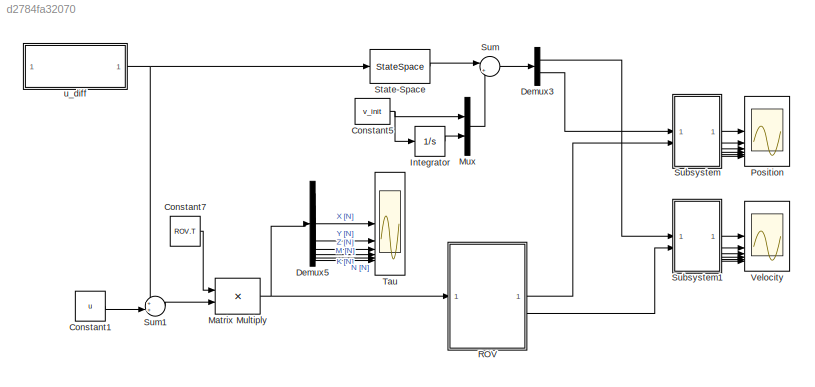
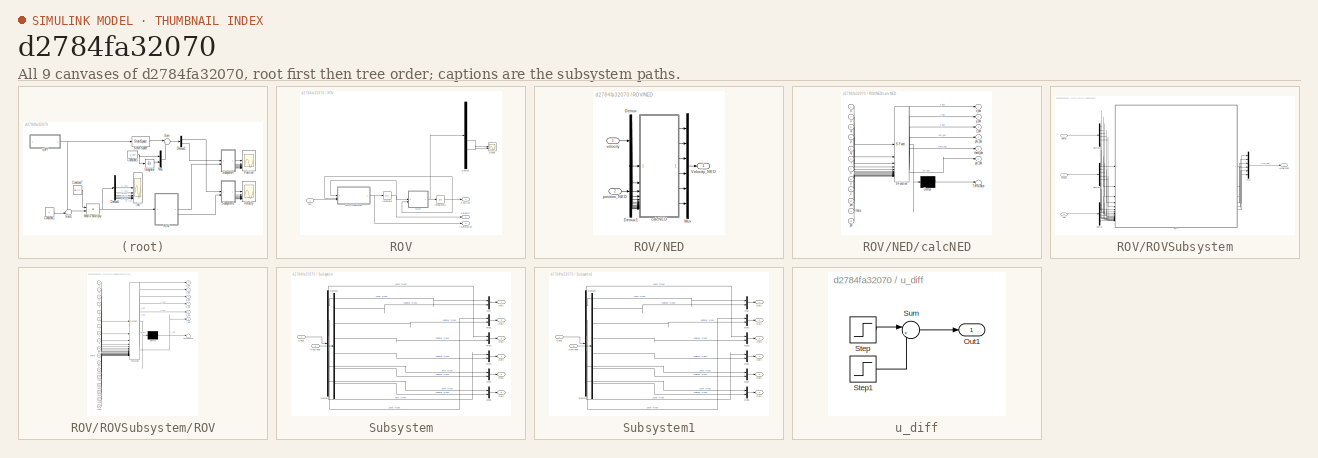
[diagram: thumbnail index - all 9 canvases of the model, root first then tree order]
MODEL slx_d2784fa32070
KIND model
CONFIG AbsTol = auto
CONFIG EnableMultiTasking = off
CONFIG FixedStep = auto
CONFIG MaxStep = 1e-3
CONFIG MinStep = auto
CONFIG RelTol = 1e-6
CONFIG SampleTimeConstraint = Unconstrained
CONFIG SolverName = VariableStepAuto
CONFIG StartTime = 0.0
CONFIG StopTime = 90
BLOCK [Constant] Constant1
  Value = u
BLOCK [Constant] Constant5
  Value = v_init
BLOCK [Constant] Constant7
  Value = ROV.T
BLOCK [Demux] Demux3
  Outputs = 2
BLOCK [Demux] Demux5
  Outputs = 6
BLOCK [Integrator] Integrator
BLOCK [Product] Matrix Multiply
  Multiplication = Matrix(*)
BLOCK [Mux] Mux
  DisplayOption = bar
  Inputs = 2
BLOCK [Scope] Position
  Floating = off
  NumInputPorts = 6
  ScopeSpecificationString = Simulink.scopes.TimeScopeBlockCfg('CurrentConfiguration', extmgr.ConfigurationSet(extmgr.Configuration('Core','General UI',true,'FigureColor',[1 1 1]),extmgr.Configuration('Core','Source UI',true),extmgr.Configuration('Sources','WiredSimulink',true,'DataLoggingVariableName','ScopeData1'),extmgr.Configuration('Visuals','Time Domain',true,'SerializedDisplays',{struct('MinYLimReal','-11.5275','MaxYLi...<+7548ch>
BLOCK [SubSystem] ROV
BLOCK [Outport] ROV/Acceleration
  Port = 3
BLOCK [Demux] ROV/Demux
  Outputs = 6
BLOCK [Integrator] ROV/Integrator
  InitialCondition = v_init'
BLOCK [Integrator] ROV/Integrator1
  InitialCondition = eta_init'
BLOCK [SubSystem] ROV/NED
BLOCK [Demux] ROV/NED/Demux
  Outputs = 6
BLOCK [Demux] ROV/NED/Demux1
  Outputs = 6
BLOCK [Mux] ROV/NED/Mux
  DisplayOption = bar
  Inputs = 6
BLOCK [Outport] ROV/NED/Velocity_NED
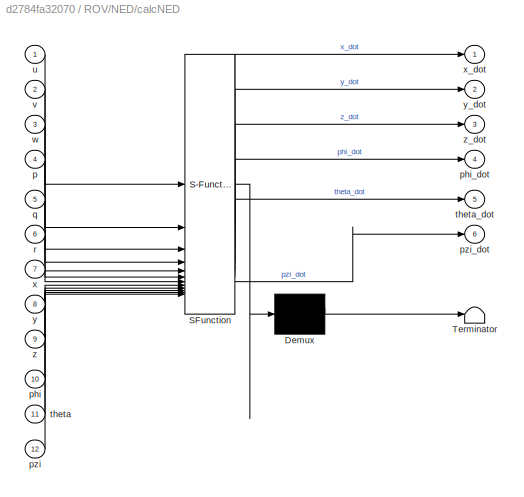
BLOCK [SubSystem] ROV/NED/calcNED
  ErrorFcn = Stateflow.Translate.translate
  PermitHierarchicalResolution = ExplicitOnly
  SFBlockType = MATLAB Function
  TreatAsAtomicUnit = on
BLOCK [Demux] ROV/NED/calcNED/ Demux 
  Outputs = 1
BLOCK [S-Function] ROV/NED/calcNED/ SFunction 
  EnableBusSupport = on
  FunctionName = sf_sfun
  PortCounts = [12 7]
  SFcnIsStateOwnerBlock = off
  SFunctionDeploymentMode = off
  Tag = Stateflow S-Function 1
BLOCK [Terminator] ROV/NED/calcNED/ Terminator 
BLOCK [Inport] ROV/NED/calcNED/p
  Port = 4
BLOCK [Inport] ROV/NED/calcNED/phi
  Port = 10
BLOCK [Outport] ROV/NED/calcNED/phi_dot
  Port = 4
BLOCK [Inport] ROV/NED/calcNED/pzi
  Port = 12
BLOCK [Outport] ROV/NED/calcNED/pzi_dot
  Port = 6
BLOCK [Inport] ROV/NED/calcNED/q
  Port = 5
BLOCK [Inport] ROV/NED/calcNED/r
  Port = 6
BLOCK [Inport] ROV/NED/calcNED/theta
  Port = 11
BLOCK [Outport] ROV/NED/calcNED/theta_dot
  Port = 5
BLOCK [Inport] ROV/NED/calcNED/u
BLOCK [Inport] ROV/NED/calcNED/v
  Port = 2
BLOCK [Inport] ROV/NED/calcNED/w
  Port = 3
BLOCK [Inport] ROV/NED/calcNED/x
  Port = 7
BLOCK [Outport] ROV/NED/calcNED/x_dot
BLOCK [Inport] ROV/NED/calcNED/y
  Port = 8
BLOCK [Outport] ROV/NED/calcNED/y_dot
  Port = 2
BLOCK [Inport] ROV/NED/calcNED/z
  Port = 9
BLOCK [Outport] ROV/NED/calcNED/z_dot
  Port = 3
BLOCK [Inport] ROV/NED/position_NED
  Port = 2
BLOCK [Inport] ROV/NED/velocity
BLOCK [Outport] ROV/Position
BLOCK [SubSystem] ROV/ROVSubsystem
BLOCK [Outport] ROV/ROVSubsystem/Acceleration
BLOCK [Demux] ROV/ROVSubsystem/Demux
  Outputs = 6
BLOCK [Demux] ROV/ROVSubsystem/Demux1
  Outputs = 6
BLOCK [Demux] ROV/ROVSubsystem/Demux2
  Outputs = 6
BLOCK [Mux] ROV/ROVSubsystem/Mux
  DisplayOption = bar
  Inputs = 6
BLOCK [Inport] ROV/ROVSubsystem/Position
  Port = 2
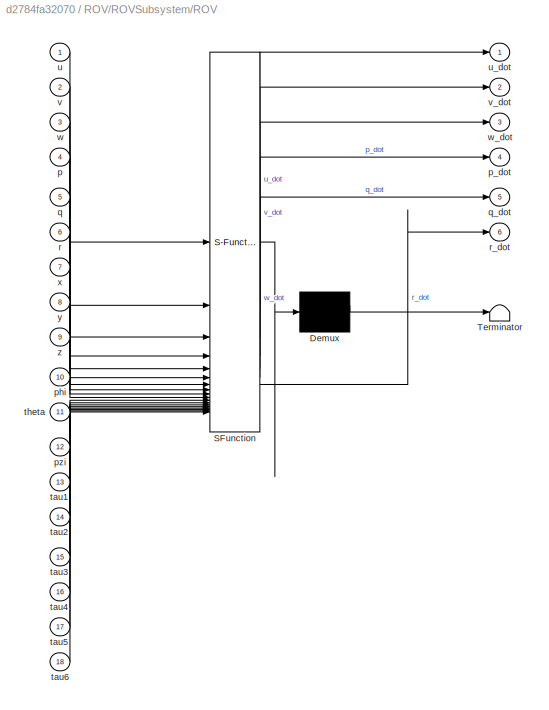
BLOCK [SubSystem] ROV/ROVSubsystem/ROV
  ErrorFcn = Stateflow.Translate.translate
  PermitHierarchicalResolution = ExplicitOnly
  SFBlockType = MATLAB Function
  TreatAsAtomicUnit = on
BLOCK [Demux] ROV/ROVSubsystem/ROV/ Demux 
  Outputs = 1
BLOCK [S-Function] ROV/ROVSubsystem/ROV/ SFunction 
  EnableBusSupport = on
  FunctionName = sf_sfun
  PortCounts = [18 7]
  SFcnIsStateOwnerBlock = off
  SFunctionDeploymentMode = off
  Tag = Stateflow S-Function 2
BLOCK [Terminator] ROV/ROVSubsystem/ROV/ Terminator 
BLOCK [Inport] ROV/ROVSubsystem/ROV/p
  Port = 4
BLOCK [Outport] ROV/ROVSubsystem/ROV/p_dot
  Port = 4
BLOCK [Inport] ROV/ROVSubsystem/ROV/phi
  Port = 10
BLOCK [Inport] ROV/ROVSubsystem/ROV/pzi
  Port = 12
BLOCK [Inport] ROV/ROVSubsystem/ROV/q
  Port = 5
BLOCK [Outport] ROV/ROVSubsystem/ROV/q_dot
  Port = 5
BLOCK [Inport] ROV/ROVSubsystem/ROV/r
  Port = 6
BLOCK [Outport] ROV/ROVSubsystem/ROV/r_dot
  Port = 6
BLOCK [Inport] ROV/ROVSubsystem/ROV/tau1
  Port = 13
BLOCK [Inport] ROV/ROVSubsystem/ROV/tau2
  Port = 14
BLOCK [Inport] ROV/ROVSubsystem/ROV/tau3
  Port = 15
BLOCK [Inport] ROV/ROVSubsystem/ROV/tau4
  Port = 16
BLOCK [Inport] ROV/ROVSubsystem/ROV/tau5
  Port = 17
BLOCK [Inport] ROV/ROVSubsystem/ROV/tau6
  Port = 18
BLOCK [Inport] ROV/ROVSubsystem/ROV/theta
  Port = 11
BLOCK [Inport] ROV/ROVSubsystem/ROV/u
BLOCK [Outport] ROV/ROVSubsystem/ROV/u_dot
BLOCK [Inport] ROV/ROVSubsystem/ROV/v
  Port = 2
BLOCK [Outport] ROV/ROVSubsystem/ROV/v_dot
  Port = 2
BLOCK [Inport] ROV/ROVSubsystem/ROV/w
  Port = 3
BLOCK [Outport] ROV/ROVSubsystem/ROV/w_dot
  Port = 3
BLOCK [Inport] ROV/ROVSubsystem/ROV/x
  Port = 7
BLOCK [Inport] ROV/ROVSubsystem/ROV/y
  Port = 8
BLOCK [Inport] ROV/ROVSubsystem/ROV/z
  Port = 9
BLOCK [Inport] ROV/ROVSubsystem/Tau
  Port = 3
BLOCK [Inport] ROV/ROVSubsystem/Velocity
BLOCK [Scope] ROV/Scope
  Floating = off
  NumInputPorts = 2
  ScopeSpecificationString = Simulink.scopes.TimeScopeBlockCfg('CurrentConfiguration', extmgr.ConfigurationSet(extmgr.Configuration('Core','General UI',true),extmgr.Configuration('Core','Source UI',true),extmgr.Configuration('Sources','WiredSimulink',true,'DataLoggingVariableName','ScopeData1'),extmgr.Configuration('Visuals','Time Domain',true,'SerializedDisplays',{struct('MinYLimReal','-0.13104','MaxYLimReal','0.23192','YLab...<+1985ch>
BLOCK [Inport] ROV/Tau
BLOCK [Outport] ROV/Velocity
  Port = 2
BLOCK [StateSpace] State-Space
  A = linsysROV.A
  B = linsysROV.B
  C = linsysROV.C
  D = linsysROV.D
  InitialCondition = zeros(1,12)
BLOCK [SubSystem] Subsystem
BLOCK [Demux] Subsystem/Demux
  Outputs = 6
BLOCK [Demux] Subsystem/Demux1
  Outputs = 6
BLOCK [Inport] Subsystem/Linear
BLOCK [Mux] Subsystem/Mux
  DisplayOption = bar
  Inputs = 2
BLOCK [Mux] Subsystem/Mux1
  DisplayOption = bar
  Inputs = 2
BLOCK [Mux] Subsystem/Mux2
  DisplayOption = bar
  Inputs = 2
BLOCK [Mux] Subsystem/Mux3
  DisplayOption = bar
  Inputs = 2
BLOCK [Mux] Subsystem/Mux4
  DisplayOption = bar
  Inputs = 2
BLOCK [Mux] Subsystem/Mux5
  DisplayOption = bar
  Inputs = 2
BLOCK [Inport] Subsystem/Nonlinear
  Port = 2
BLOCK [Outport] Subsystem/Out1
BLOCK [Outport] Subsystem/Out2
  Port = 2
BLOCK [Outport] Subsystem/Out3
  Port = 3
BLOCK [Outport] Subsystem/Out4
  Port = 4
BLOCK [Outport] Subsystem/Out5
  Port = 5
BLOCK [Outport] Subsystem/Out6
  Port = 6
BLOCK [SubSystem] Subsystem1
BLOCK [Demux] Subsystem1/Demux
  Outputs = 6
BLOCK [Demux] Subsystem1/Demux1
  Outputs = 6
BLOCK [Inport] Subsystem1/Linear
BLOCK [Mux] Subsystem1/Mux
  DisplayOption = bar
  Inputs = 2
BLOCK [Mux] Subsystem1/Mux1
  DisplayOption = bar
  Inputs = 2
BLOCK [Mux] Subsystem1/Mux2
  DisplayOption = bar
  Inputs = 2
BLOCK [Mux] Subsystem1/Mux3
  DisplayOption = bar
  Inputs = 2
BLOCK [Mux] Subsystem1/Mux4
  DisplayOption = bar
  Inputs = 2
BLOCK [Mux] Subsystem1/Mux5
  DisplayOption = bar
  Inputs = 2
BLOCK [Inport] Subsystem1/Nonlinear
  Port = 2
BLOCK [Outport] Subsystem1/Out1
BLOCK [Outport] Subsystem1/Out2
  Port = 2
BLOCK [Outport] Subsystem1/Out3
  Port = 3
BLOCK [Outport] Subsystem1/Out4
  Port = 4
BLOCK [Outport] Subsystem1/Out5
  Port = 5
BLOCK [Outport] Subsystem1/Out6
  Port = 6
BLOCK [Sum] Sum
  Inputs = |++
BLOCK [Sum] Sum1
  Inputs = ++|
BLOCK [Scope] Tau
  Floating = off
  NumInputPorts = 6
  ScopeSpecificationString = Simulink.scopes.TimeScopeBlockCfg('CurrentConfiguration', extmgr.ConfigurationSet(extmgr.Configuration('Core','General UI',true,'FigureColor',[1 1 1]),extmgr.Configuration('Core','Source UI',true),extmgr.Configuration('Sources','WiredSimulink',true,'DataLoggingVariableName','ScopeData3'),extmgr.Configuration('Visuals','Time Domain',true,'SerializedDisplays',{struct('MinYLimReal','94.26294','MaxYLi...<+5793ch>
BLOCK [Scope] Velocity
  Floating = off
  NumInputPorts = 6
  ScopeSpecificationString = Simulink.scopes.TimeScopeBlockCfg('CurrentConfiguration', extmgr.ConfigurationSet(extmgr.Configuration('Core','General UI',true,'FigureColor',[1 1 1]),extmgr.Configuration('Core','Source UI',true),extmgr.Configuration('Sources','WiredSimulink',true,'DataLoggingVariableName','ScopeData2'),extmgr.Configuration('Visuals','Time Domain',true,'SerializedDisplays',{struct('MinYLimReal','0.98612','MaxYLim...<+7548ch>
BLOCK [SubSystem] u_diff
BLOCK [Outport] u_diff/Out1
BLOCK [Step] u_diff/Step
  After = New_val
  Before = Init_val
  SampleTime = 0
  Time = Step_time_1
BLOCK [Step] u_diff/Step1
  After = New_val
  SampleTime = 0
  Time = Step_time_2
BLOCK [Sum] u_diff/Sum
  Inputs = |+-
LINE Constant1:1 -> Sum1:2
NET Constant5:1 -> Integrator:1, Mux:1
LINE Constant7:1 -> Matrix Multiply:1
LINE Demux3:1 -> Subsystem1:1
LINE Demux3:2 -> Subsystem:1
LINE Demux5:1 -> Tau:1
LINE Demux5:2 -> Tau:2
LINE Demux5:3 -> Tau:3
LINE Demux5:4 -> Tau:4
LINE Demux5:5 -> Tau:5
LINE Demux5:6 -> Tau:6
LINE Integrator:1 -> Mux:2
NET Matrix Multiply:1 -> Demux5:1, ROV:1
LINE Mux:1 -> Sum:2
LINE ROV/Demux:4 -> ROV/Scope:1
LINE ROV/Demux:5 -> ROV/Scope:2
NET ROV/Integrator1:1 -> ROV/NED:2, ROV/Position:1, ROV/ROVSubsystem:2
NET ROV/Integrator:1 -> ROV/NED:1, ROV/ROVSubsystem:1, ROV/Velocity:1
LINE ROV/NED/Demux1:1 -> ROV/NED/calcNED:7
LINE ROV/NED/Demux1:2 -> ROV/NED/calcNED:8
LINE ROV/NED/Demux1:3 -> ROV/NED/calcNED:9
LINE ROV/NED/Demux1:4 -> ROV/NED/calcNED:10
LINE ROV/NED/Demux1:5 -> ROV/NED/calcNED:11
LINE ROV/NED/Demux1:6 -> ROV/NED/calcNED:12
LINE ROV/NED/Demux:1 -> ROV/NED/calcNED:1
LINE ROV/NED/Demux:2 -> ROV/NED/calcNED:2
LINE ROV/NED/Demux:3 -> ROV/NED/calcNED:3
LINE ROV/NED/Demux:4 -> ROV/NED/calcNED:4
LINE ROV/NED/Demux:5 -> ROV/NED/calcNED:5
LINE ROV/NED/Demux:6 -> ROV/NED/calcNED:6
LINE ROV/NED/Mux:1 -> ROV/NED/Velocity_NED:1
LINE ROV/NED/calcNED:1 -> ROV/NED/Mux:1
LINE ROV/NED/calcNED:2 -> ROV/NED/Mux:2
LINE ROV/NED/calcNED:3 -> ROV/NED/Mux:3
LINE ROV/NED/calcNED:4 -> ROV/NED/Mux:4
LINE ROV/NED/calcNED:5 -> ROV/NED/Mux:5
LINE ROV/NED/calcNED:6 -> ROV/NED/Mux:6
LINE ROV/NED/position_NED:1 -> ROV/NED/Demux1:1
LINE ROV/NED/velocity:1 -> ROV/NED/Demux:1
NET ROV/NED:1 -> ROV/Demux:1, ROV/Integrator1:1
LINE ROV/ROVSubsystem/Demux1:1 -> ROV/ROVSubsystem/ROV:7
LINE ROV/ROVSubsystem/Demux1:2 -> ROV/ROVSubsystem/ROV:8
LINE ROV/ROVSubsystem/Demux1:3 -> ROV/ROVSubsystem/ROV:9
LINE ROV/ROVSubsystem/Demux1:4 -> ROV/ROVSubsystem/ROV:10
LINE ROV/ROVSubsystem/Demux1:5 -> ROV/ROVSubsystem/ROV:11
LINE ROV/ROVSubsystem/Demux1:6 -> ROV/ROVSubsystem/ROV:12
LINE ROV/ROVSubsystem/Demux2:1 -> ROV/ROVSubsystem/ROV:1
LINE ROV/ROVSubsystem/Demux2:2 -> ROV/ROVSubsystem/ROV:2
LINE ROV/ROVSubsystem/Demux2:3 -> ROV/ROVSubsystem/ROV:3
LINE ROV/ROVSubsystem/Demux2:4 -> ROV/ROVSubsystem/ROV:4
LINE ROV/ROVSubsystem/Demux2:5 -> ROV/ROVSubsystem/ROV:5
LINE ROV/ROVSubsystem/Demux2:6 -> ROV/ROVSubsystem/ROV:6
LINE ROV/ROVSubsystem/Demux:1 -> ROV/ROVSubsystem/ROV:13
LINE ROV/ROVSubsystem/Demux:2 -> ROV/ROVSubsystem/ROV:14
LINE ROV/ROVSubsystem/Demux:3 -> ROV/ROVSubsystem/ROV:15
LINE ROV/ROVSubsystem/Demux:4 -> ROV/ROVSubsystem/ROV:16
LINE ROV/ROVSubsystem/Demux:5 -> ROV/ROVSubsystem/ROV:17
LINE ROV/ROVSubsystem/Demux:6 -> ROV/ROVSubsystem/ROV:18
LINE ROV/ROVSubsystem/Mux:1 -> ROV/ROVSubsystem/Acceleration:1
LINE ROV/ROVSubsystem/Position:1 -> ROV/ROVSubsystem/Demux1:1
LINE ROV/ROVSubsystem/ROV:1 -> ROV/ROVSubsystem/Mux:1
LINE ROV/ROVSubsystem/ROV:2 -> ROV/ROVSubsystem/Mux:2
LINE ROV/ROVSubsystem/ROV:3 -> ROV/ROVSubsystem/Mux:3
LINE ROV/ROVSubsystem/ROV:4 -> ROV/ROVSubsystem/Mux:4
LINE ROV/ROVSubsystem/ROV:5 -> ROV/ROVSubsystem/Mux:5
LINE ROV/ROVSubsystem/ROV:6 -> ROV/ROVSubsystem/Mux:6
LINE ROV/ROVSubsystem/Tau:1 -> ROV/ROVSubsystem/Demux:1
LINE ROV/ROVSubsystem/Velocity:1 -> ROV/ROVSubsystem/Demux2:1
NET ROV/ROVSubsystem:1 -> ROV/Acceleration:1, ROV/Integrator:1
LINE ROV/Tau:1 -> ROV/ROVSubsystem:3
LINE ROV:1 -> Subsystem:2
LINE ROV:2 -> Subsystem1:2
LINE State-Space:1 -> Sum:1
LINE Subsystem/Demux1:1 -> Subsystem/Mux:2
LINE Subsystem/Demux1:2 -> Subsystem/Mux1:2
LINE Subsystem/Demux1:3 -> Subsystem/Mux2:2
LINE Subsystem/Demux1:4 -> Subsystem/Mux3:2
LINE Subsystem/Demux1:5 -> Subsystem/Mux4:2
LINE Subsystem/Demux1:6 -> Subsystem/Mux5:2
LINE Subsystem/Demux:1 -> Subsystem/Mux:1
LINE Subsystem/Demux:2 -> Subsystem/Mux1:1
LINE Subsystem/Demux:3 -> Subsystem/Mux2:1
LINE Subsystem/Demux:4 -> Subsystem/Mux3:1
LINE Subsystem/Demux:5 -> Subsystem/Mux4:1
LINE Subsystem/Demux:6 -> Subsystem/Mux5:1
LINE Subsystem/Linear:1 -> Subsystem/Demux:1
LINE Subsystem/Mux1:1 -> Subsystem/Out2:1
LINE Subsystem/Mux2:1 -> Subsystem/Out3:1
LINE Subsystem/Mux3:1 -> Subsystem/Out4:1
LINE Subsystem/Mux4:1 -> Subsystem/Out5:1
LINE Subsystem/Mux5:1 -> Subsystem/Out6:1
LINE Subsystem/Mux:1 -> Subsystem/Out1:1
LINE Subsystem/Nonlinear:1 -> Subsystem/Demux1:1
LINE Subsystem1/Demux1:1 -> Subsystem1/Mux:2
LINE Subsystem1/Demux1:2 -> Subsystem1/Mux1:2
LINE Subsystem1/Demux1:3 -> Subsystem1/Mux2:2
LINE Subsystem1/Demux1:4 -> Subsystem1/Mux3:2
LINE Subsystem1/Demux1:5 -> Subsystem1/Mux4:2
LINE Subsystem1/Demux1:6 -> Subsystem1/Mux5:2
LINE Subsystem1/Demux:1 -> Subsystem1/Mux:1
LINE Subsystem1/Demux:2 -> Subsystem1/Mux1:1
LINE Subsystem1/Demux:3 -> Subsystem1/Mux2:1
LINE Subsystem1/Demux:4 -> Subsystem1/Mux3:1
LINE Subsystem1/Demux:5 -> Subsystem1/Mux4:1
LINE Subsystem1/Demux:6 -> Subsystem1/Mux5:1
LINE Subsystem1/Linear:1 -> Subsystem1/Demux:1
LINE Subsystem1/Mux1:1 -> Subsystem1/Out2:1
LINE Subsystem1/Mux2:1 -> Subsystem1/Out3:1
LINE Subsystem1/Mux3:1 -> Subsystem1/Out4:1
LINE Subsystem1/Mux4:1 -> Subsystem1/Out5:1
LINE Subsystem1/Mux5:1 -> Subsystem1/Out6:1
LINE Subsystem1/Mux:1 -> Subsystem1/Out1:1
LINE Subsystem1/Nonlinear:1 -> Subsystem1/Demux1:1
LINE Subsystem1:1 -> Velocity:1
LINE Subsystem1:2 -> Velocity:2
LINE Subsystem1:3 -> Velocity:3
LINE Subsystem1:4 -> Velocity:4
LINE Subsystem1:5 -> Velocity:5
LINE Subsystem1:6 -> Velocity:6
LINE Subsystem:1 -> Position:1
LINE Subsystem:2 -> Position:2
LINE Subsystem:3 -> Position:3
LINE Subsystem:4 -> Position:4
LINE Subsystem:5 -> Position:5
LINE Subsystem:6 -> Position:6
LINE Sum1:1 -> Matrix Multiply:2
LINE Sum:1 -> Demux3:1
LINE u_diff/Step1:1 -> u_diff/Sum:2
LINE u_diff/Step:1 -> u_diff/Sum:1
LINE u_diff/Sum:1 -> u_diff/Out1:1
NET u_diff:1 -> State-Space:1, Sum1:1
note: NET lines group one-source signal fan-out (src -> all destinations, sorted); 1:1 wires keep LINE
CHART ROV/NED/calcNED states=1 transitions=1
  STATE_LABEL 'eML_blk_kernel()'
  STATE_LABEL 'SCRIPT:\nfunction [x_dot,y_dot,z_dot,phi_dot,theta_dot,pzi_dot] = calcNED(u,v,w,p,q,r,x,y,z,phi,theta,pzi)\n%#codegen\n\n%    This function was generated by the Symbolic Math Toolbox version 23.2.\n%    12-Jun-2024 23:09:41\n\n% u = complex(u);  % if required to enforce complex operations\n% v = complex(v);  % if required to enforce complex operations\n% w = complex(w);  % if required to enforce complex op...<+1100ch>'
CHART ROV/ROVSubsystem/ROV states=1 transitions=1
  STATE_LABEL 'eML_blk_kernel()'
  STATE_LABEL 'SCRIPT:\nfunction [u_dot,v_dot,w_dot,p_dot,q_dot,r_dot] = ROV(u,v,w,p,q,r,x,y,z,phi,theta,pzi,tau1,tau2,tau3,tau4,tau5,tau6)\n%#codegen\n\n%    This function was generated by the Symbolic Math Toolbox version 23.2.\n%    12-Jun-2024 23:09:41\n\n% u = complex(u);  % if required to enforce complex operations\n% v = complex(v);  % if required to enforce complex operations\n% w = complex(w);  % if required to ...<+2122ch>'
CHART  states=0 transitions=0
CHART  states=0 transitions=0
